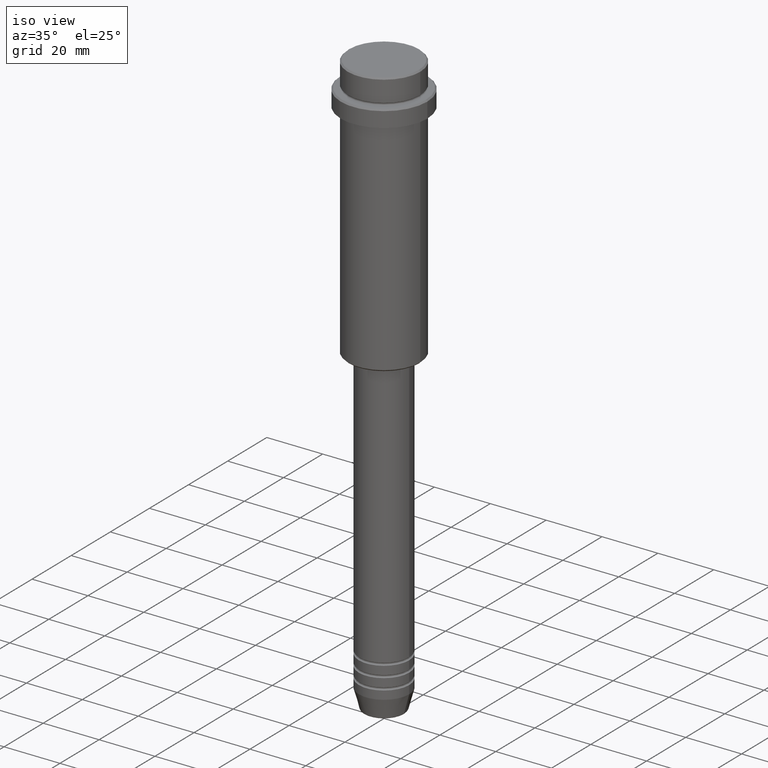
[diagram: clean part render]
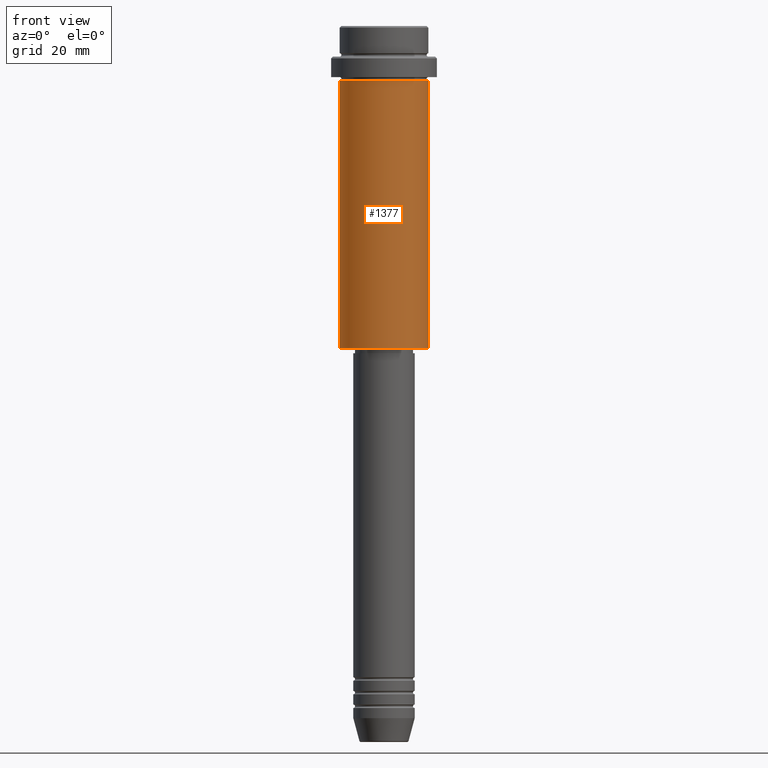
[diagram: tour spotlight — one face highlighted and labeled with its STEP entity id]
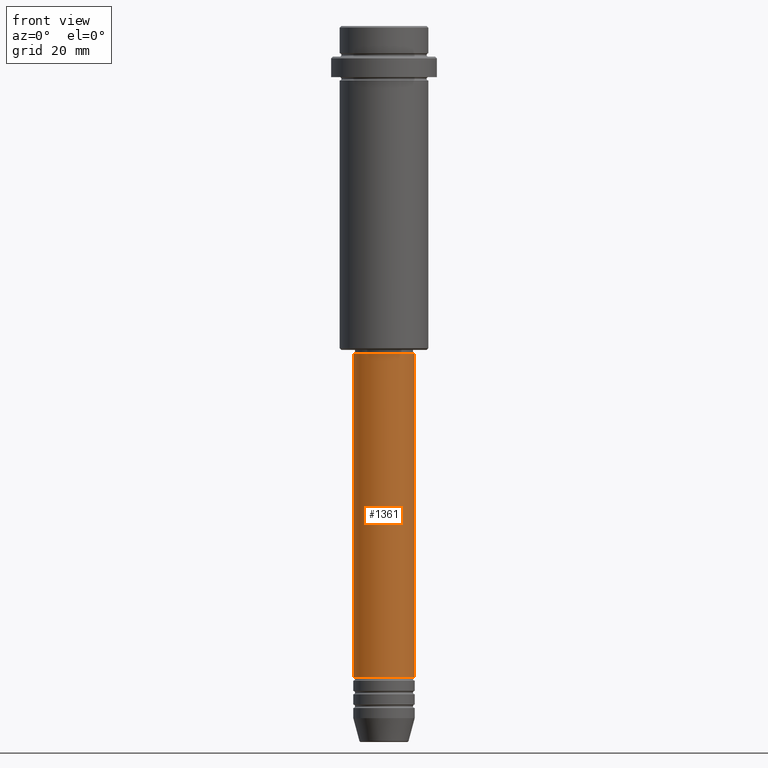
[diagram: tour spotlight — one face highlighted and labeled with its STEP entity id]
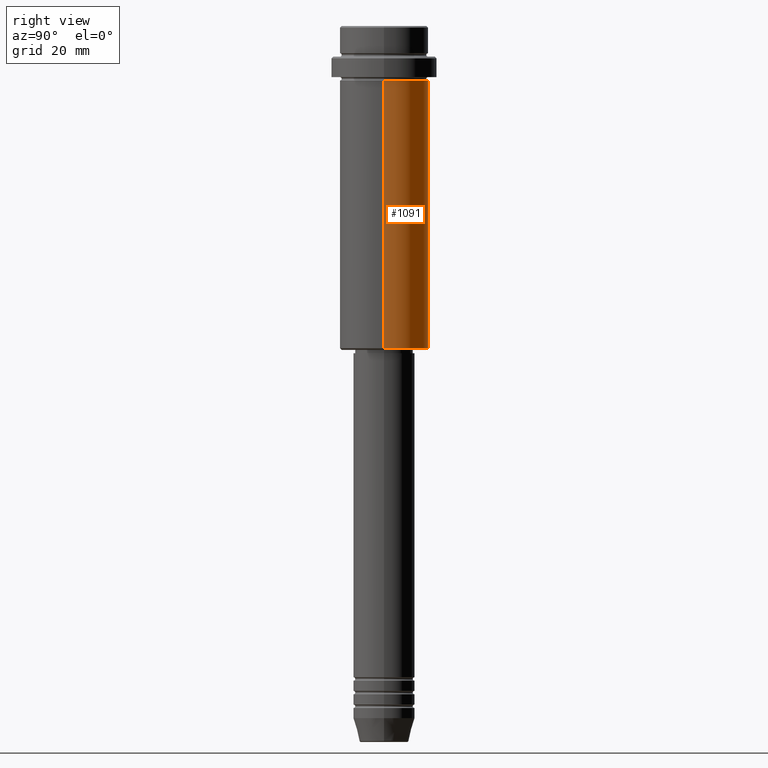
[diagram: tour spotlight — one face highlighted and labeled with its STEP entity id]
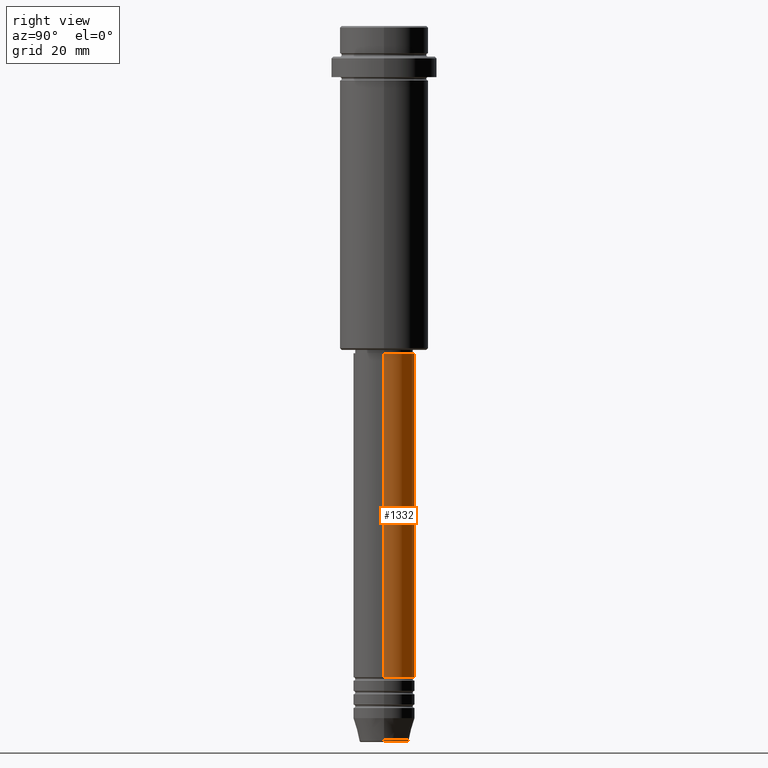
[diagram: tour spotlight — one face highlighted and labeled with its STEP entity id]
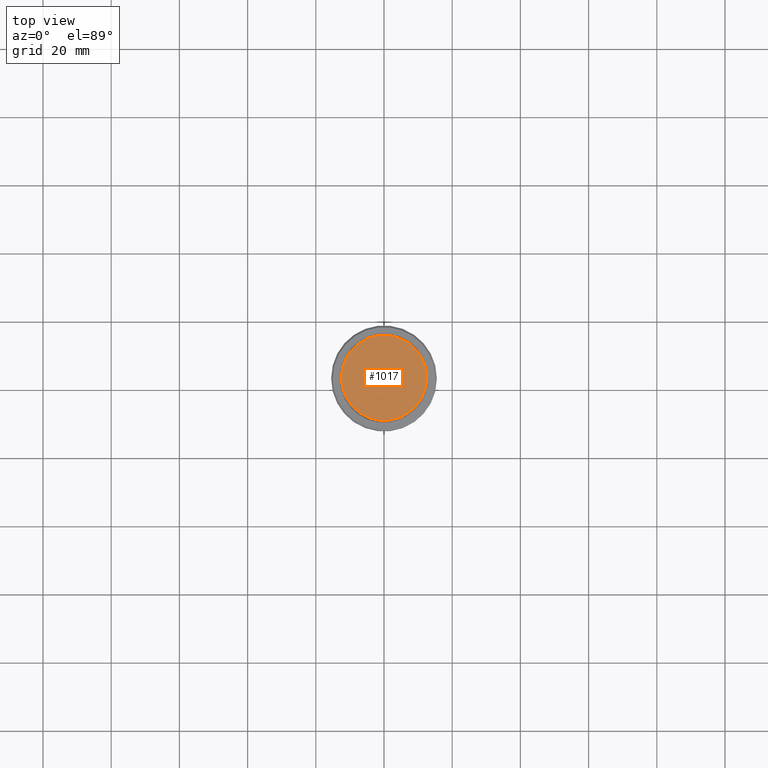
[diagram: tour spotlight — one face highlighted and labeled with its STEP entity id]
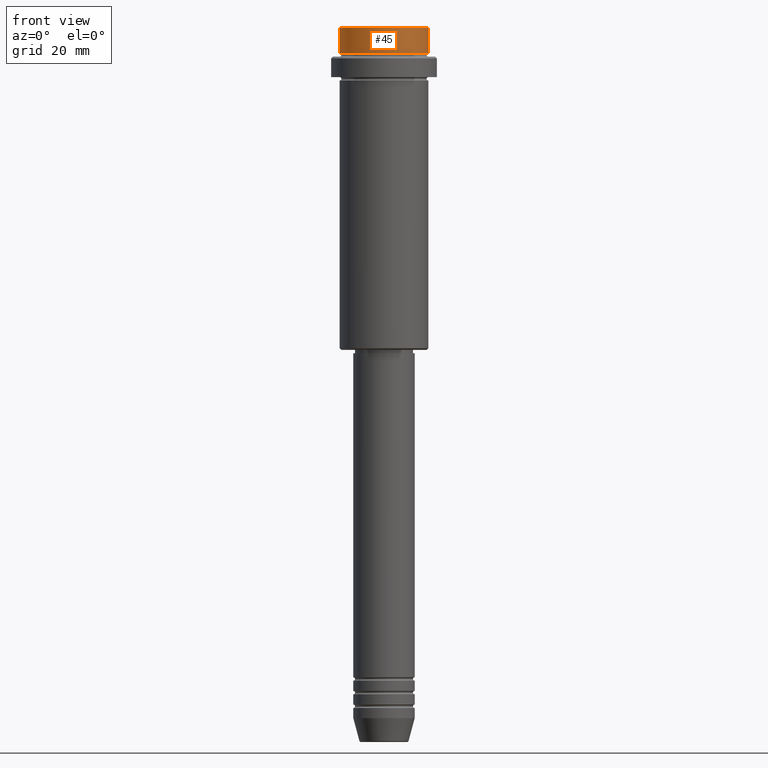
[diagram: tour spotlight — one face highlighted and labeled with its STEP entity id]
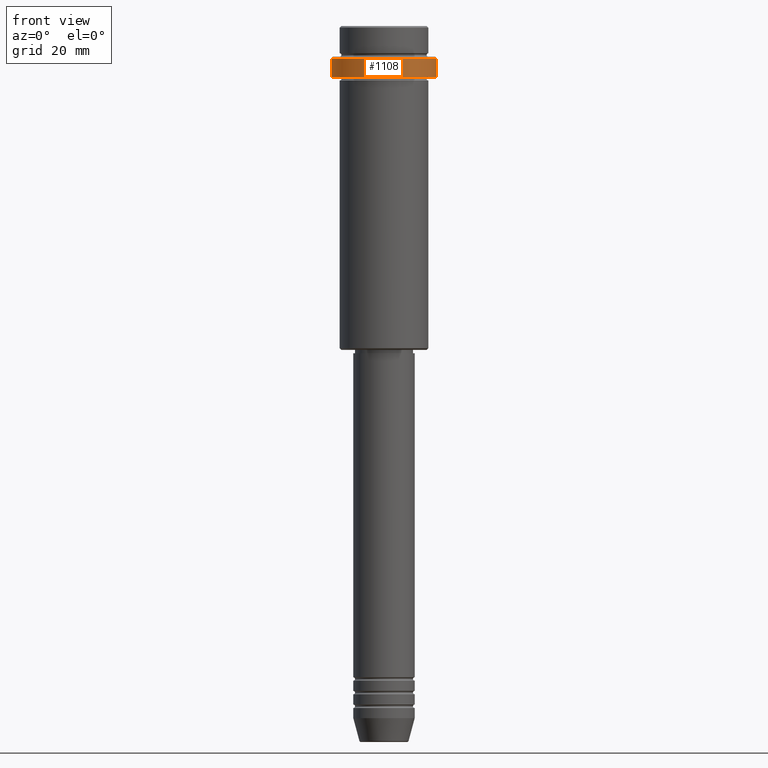
[diagram: tour spotlight — one face highlighted and labeled with its STEP entity id]
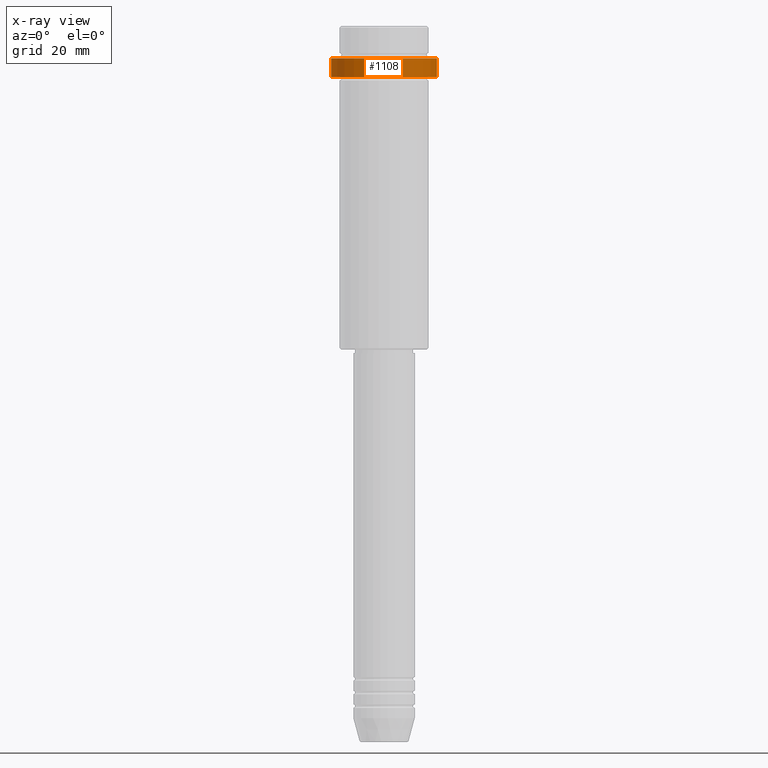
[diagram: x-ray of the same camera — body ghosted, this tour face saturated]
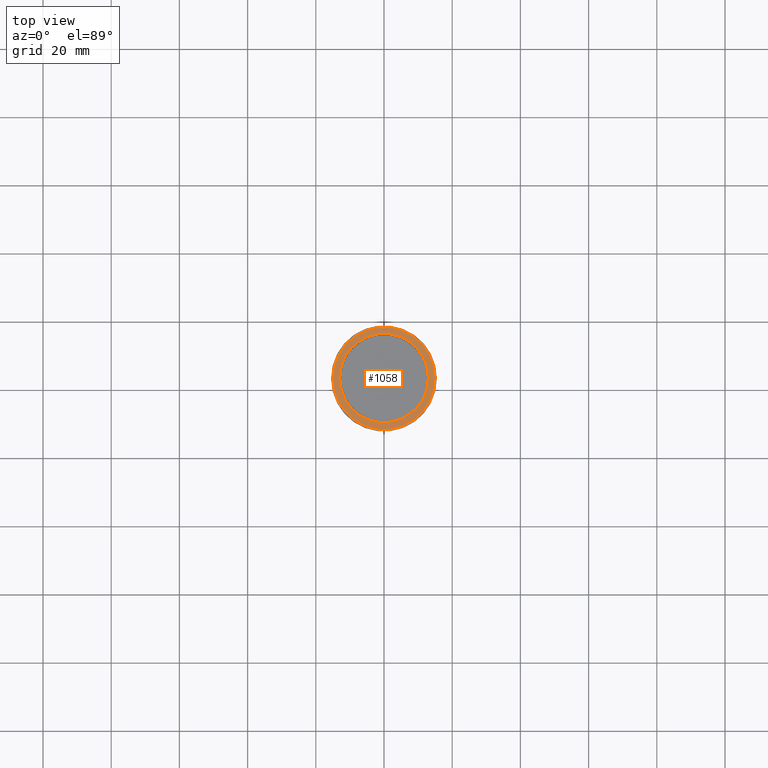
[diagram: tour spotlight — one face highlighted and labeled with its STEP entity id]
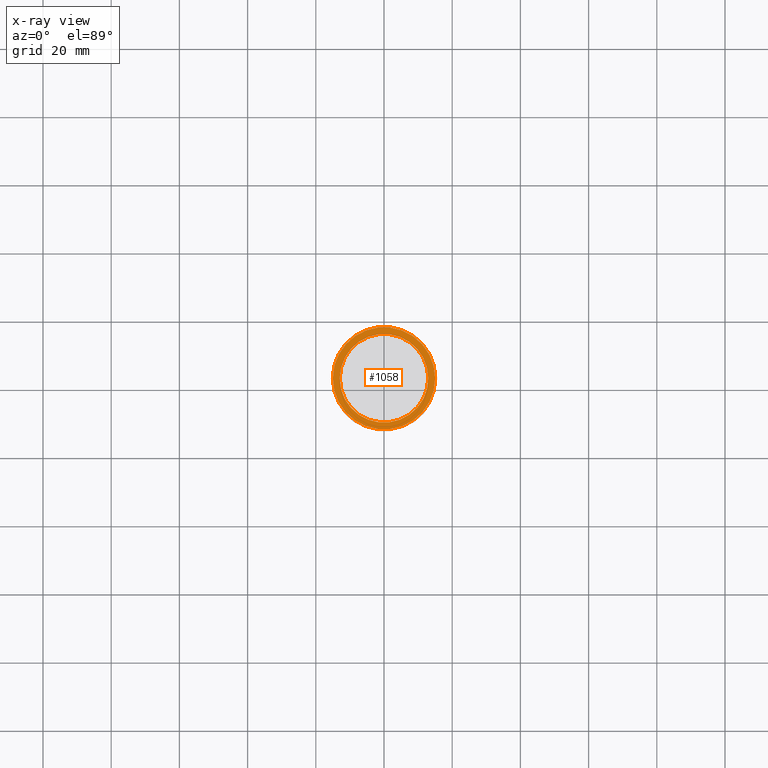
[diagram: x-ray of the same camera — body ghosted, this tour face saturated]
A machine part: a face-by-face anatomy tour. The part has 52 B-rep faces; the first image is the clean iso view, then the 8 largest visible faces are spotlighted one at a time (largest first), each with its STEP entity span.

Face 1 — front view, entity #1377. In plain terms, the highlighted cylindrical surface (partial cylindrical patch) has radius 13 mm, axis along (-0, -0, 1).
Definition (entity closure, byte-faithful):
#9 = VECTOR ( 'NONE', #1273, 1000.000000000000000 ) ;
#31 = CIRCLE ( 'NONE', #781, 13.00000000000000000 ) ;
#50 = EDGE_CURVE ( 'NONE', #1188, #589, #1367, .T. ) ;
#56 = VECTOR ( 'NONE', #707, 1000.000000000000000 ) ;
#84 = CARTESIAN_POINT ( 'NONE',  ( 0.000000000000000000, 0.000000000000000000, -16.00000000000000000 ) ) ;
#154 = VERTEX_POINT ( 'NONE', #459 ) ;
#169 = EDGE_CURVE ( 'NONE', #589, #154, #31, .T. ) ;
#177 = CYLINDRICAL_SURFACE ( 'NONE', #901, 13.00000000000000000 ) ;
#216 = AXIS2_PLACEMENT_3D ( 'NONE', #1342, #576, #286 ) ;
#259 = EDGE_CURVE ( 'NONE', #1188, #449, #962, .T. ) ;
#286 = DIRECTION ( 'NONE',  ( -1.000000000000000000, 0.000000000000000000, 0.000000000000000000 ) ) ;
#298 = FACE_OUTER_BOUND ( 'NONE', #1365, .T. ) ;
#386 = CARTESIAN_POINT ( 'NONE',  ( -13.00000000000000000, 1.592040838891559095E-15, 0.000000000000000000 ) ) ;
#391 = ORIENTED_EDGE ( 'NONE', *, *, #169, .F. ) ;
#449 = VERTEX_POINT ( 'NONE', #1151 ) ;
#459 = CARTESIAN_POINT ( 'NONE',  ( 13.00000000000000000, 0.000000000000000000, -16.00000000000000000 ) ) ;
#551 = EDGE_CURVE ( 'NONE', #449, #154, #618, .T. ) ;
#576 = DIRECTION ( 'NONE',  ( -0.000000000000000000, -0.000000000000000000, 1.000000000000000000 ) ) ;
#589 = VERTEX_POINT ( 'NONE', #775 ) ;
#611 = CARTESIAN_POINT ( 'NONE',  ( 0.000000000000000000, 0.000000000000000000, 0.000000000000000000 ) ) ;
#618 = LINE ( 'NONE', #1173, #9 ) ;
#707 = DIRECTION ( 'NONE',  ( -0.000000000000000000, -0.000000000000000000, 1.000000000000000000 ) ) ;
#759 = ORIENTED_EDGE ( 'NONE', *, *, #259, .T. ) ;
#775 = CARTESIAN_POINT ( 'NONE',  ( -13.00000000000000000, 1.592040838891559095E-15, -16.00000000000000000 ) ) ;
#781 = AXIS2_PLACEMENT_3D ( 'NONE', #84, #849, #950 ) ;
#849 = DIRECTION ( 'NONE',  ( -0.000000000000000000, -0.000000000000000000, 1.000000000000000000 ) ) ;
#901 = AXIS2_PLACEMENT_3D ( 'NONE', #611, #1044, #1163 ) ;
#950 = DIRECTION ( 'NONE',  ( 1.000000000000000000, 0.000000000000000000, 0.000000000000000000 ) ) ;
#962 = CIRCLE ( 'NONE', #216, 13.00000000000000000 ) ;
#1044 = DIRECTION ( 'NONE',  ( -0.000000000000000000, -0.000000000000000000, 1.000000000000000000 ) ) ;
#1135 = CARTESIAN_POINT ( 'NONE',  ( -13.00000000000000000, 1.592040838891559095E-15, -94.49999999999994316 ) ) ;
#1151 = CARTESIAN_POINT ( 'NONE',  ( 13.00000000000000000, 0.000000000000000000, -94.49999999999994316 ) ) ;
#1163 = DIRECTION ( 'NONE',  ( 1.000000000000000000, 0.000000000000000000, 0.000000000000000000 ) ) ;
#1173 = CARTESIAN_POINT ( 'NONE',  ( 13.00000000000000000, 0.000000000000000000, 0.000000000000000000 ) ) ;
#1188 = VERTEX_POINT ( 'NONE', #1135 ) ;
#1189 = ORIENTED_EDGE ( 'NONE', *, *, #551, .T. ) ;
#1261 = ORIENTED_EDGE ( 'NONE', *, *, #50, .F. ) ;
#1273 = DIRECTION ( 'NONE',  ( -0.000000000000000000, -0.000000000000000000, 1.000000000000000000 ) ) ;
#1342 = CARTESIAN_POINT ( 'NONE',  ( 0.000000000000000000, 0.000000000000000000, -94.49999999999994316 ) ) ;
#1365 = EDGE_LOOP ( 'NONE', ( #1261, #759, #1189, #391 ) ) ;
#1367 = LINE ( 'NONE', #386, #56 ) ;
#1377 = ADVANCED_FACE ( 'NONE', ( #298 ), #177, .T. ) ;

Face 2 — front view, entity #1361. In plain terms, the highlighted cylindrical surface (edge-blend (fillet) strip) has radius 9 mm, axis along (-0, -0, 1).
Definition (entity closure, byte-faithful):
#11 = CIRCLE ( 'NONE', #469, 9.000000000000001776 ) ;
#29 = CARTESIAN_POINT ( 'NONE',  ( -9.000000000000001776, 1.102182119232617911E-15, 0.000000000000000000 ) ) ;
#53 = CARTESIAN_POINT ( 'NONE',  ( 0.000000000000000000, 0.000000000000000000, -190.9999999999999147 ) ) ;
#57 = VECTOR ( 'NONE', #680, 1000.000000000000000 ) ;
#64 = VERTEX_POINT ( 'NONE', #1038 ) ;
#77 = VERTEX_POINT ( 'NONE', #1382 ) ;
#101 = VECTOR ( 'NONE', #187, 1000.000000000000000 ) ;
#158 = ORIENTED_EDGE ( 'NONE', *, *, #524, .T. ) ;
#166 = VERTEX_POINT ( 'NONE', #886 ) ;
#167 = CARTESIAN_POINT ( 'NONE',  ( 0.000000000000000000, 0.000000000000000000, 0.000000000000000000 ) ) ;
#187 = DIRECTION ( 'NONE',  ( -0.000000000000000000, -0.000000000000000000, 1.000000000000000000 ) ) ;
#202 = ORIENTED_EDGE ( 'NONE', *, *, #296, .F. ) ;
#296 = EDGE_CURVE ( 'NONE', #77, #64, #1267, .T. ) ;
#302 = VERTEX_POINT ( 'NONE', #499 ) ;
#333 = AXIS2_PLACEMENT_3D ( 'NONE', #53, #389, #1237 ) ;
#363 = EDGE_CURVE ( 'NONE', #77, #166, #441, .T. ) ;
#368 = CARTESIAN_POINT ( 'NONE',  ( 0.000000000000000000, 0.000000000000000000, -96.00000000000000000 ) ) ;
#372 = DIRECTION ( 'NONE',  ( 1.000000000000000000, 0.000000000000000000, 0.000000000000000000 ) ) ;
#389 = DIRECTION ( 'NONE',  ( -0.000000000000000000, -0.000000000000000000, 1.000000000000000000 ) ) ;
#441 = CIRCLE ( 'NONE', #333, 9.000000000000000000 ) ;
#469 = AXIS2_PLACEMENT_3D ( 'NONE', #368, #1033, #372 ) ;
#499 = CARTESIAN_POINT ( 'NONE',  ( 9.000000000000001776, 0.000000000000000000, -96.00000000000000000 ) ) ;
#501 = FACE_OUTER_BOUND ( 'NONE', #1268, .T. ) ;
#524 = EDGE_CURVE ( 'NONE', #166, #302, #1166, .T. ) ;
#680 = DIRECTION ( 'NONE',  ( -0.000000000000000000, -0.000000000000000000, 1.000000000000000000 ) ) ;
#720 = ORIENTED_EDGE ( 'NONE', *, *, #363, .T. ) ;
#732 = CARTESIAN_POINT ( 'NONE',  ( 9.000000000000001776, 0.000000000000000000, 0.000000000000000000 ) ) ;
#742 = ORIENTED_EDGE ( 'NONE', *, *, #841, .F. ) ;
#841 = EDGE_CURVE ( 'NONE', #64, #302, #11, .T. ) ;
#886 = CARTESIAN_POINT ( 'NONE',  ( 9.000000000000000000, 0.000000000000000000, -190.9999999999999147 ) ) ;
#922 = AXIS2_PLACEMENT_3D ( 'NONE', #167, #1278, #930 ) ;
#930 = DIRECTION ( 'NONE',  ( 1.000000000000000000, 0.000000000000000000, 0.000000000000000000 ) ) ;
#1033 = DIRECTION ( 'NONE',  ( -0.000000000000000000, -0.000000000000000000, 1.000000000000000000 ) ) ;
#1038 = CARTESIAN_POINT ( 'NONE',  ( -9.000000000000001776, 1.102182119232617911E-15, -96.00000000000000000 ) ) ;
#1148 = CYLINDRICAL_SURFACE ( 'NONE', #922, 9.000000000000001776 ) ;
#1166 = LINE ( 'NONE', #732, #101 ) ;
#1237 = DIRECTION ( 'NONE',  ( 1.000000000000000000, 0.000000000000000000, 0.000000000000000000 ) ) ;
#1267 = LINE ( 'NONE', #29, #57 ) ;
#1268 = EDGE_LOOP ( 'NONE', ( #202, #720, #158, #742 ) ) ;
#1278 = DIRECTION ( 'NONE',  ( -0.000000000000000000, -0.000000000000000000, 1.000000000000000000 ) ) ;
#1361 = ADVANCED_FACE ( 'NONE', ( #501 ), #1148, .T. ) ;
#1382 = CARTESIAN_POINT ( 'NONE',  ( -9.000000000000000000, 1.102182119232617714E-15, -190.9999999999999147 ) ) ;

Face 3 — right view, entity #1091. In plain terms, the highlighted cylindrical surface (partial cylindrical patch) has radius 13 mm, axis along (-0, -0, 1).
Definition (entity closure, byte-faithful):
#8 = CIRCLE ( 'NONE', #806, 13.00000000000000000 ) ;
#9 = VECTOR ( 'NONE', #1273, 1000.000000000000000 ) ;
#50 = EDGE_CURVE ( 'NONE', #1188, #589, #1367, .T. ) ;
#56 = VECTOR ( 'NONE', #707, 1000.000000000000000 ) ;
#95 = DIRECTION ( 'NONE',  ( -0.000000000000000000, -0.000000000000000000, 1.000000000000000000 ) ) ;
#98 = DIRECTION ( 'NONE',  ( -0.000000000000000000, -0.000000000000000000, 1.000000000000000000 ) ) ;
#109 = EDGE_CURVE ( 'NONE', #449, #1188, #8, .T. ) ;
#154 = VERTEX_POINT ( 'NONE', #459 ) ;
#239 = EDGE_CURVE ( 'NONE', #154, #589, #1219, .T. ) ;
#255 = ORIENTED_EDGE ( 'NONE', *, *, #50, .T. ) ;
#284 = ORIENTED_EDGE ( 'NONE', *, *, #239, .F. ) ;
#308 = DIRECTION ( 'NONE',  ( -1.000000000000000000, 0.000000000000000000, 0.000000000000000000 ) ) ;
#346 = CARTESIAN_POINT ( 'NONE',  ( 0.000000000000000000, 0.000000000000000000, -94.49999999999994316 ) ) ;
#386 = CARTESIAN_POINT ( 'NONE',  ( -13.00000000000000000, 1.592040838891559095E-15, 0.000000000000000000 ) ) ;
#449 = VERTEX_POINT ( 'NONE', #1151 ) ;
#459 = CARTESIAN_POINT ( 'NONE',  ( 13.00000000000000000, 0.000000000000000000, -16.00000000000000000 ) ) ;
#533 = CARTESIAN_POINT ( 'NONE',  ( 0.000000000000000000, 0.000000000000000000, 0.000000000000000000 ) ) ;
#536 = DIRECTION ( 'NONE',  ( 1.000000000000000000, 0.000000000000000000, 0.000000000000000000 ) ) ;
#551 = EDGE_CURVE ( 'NONE', #449, #154, #618, .T. ) ;
#589 = VERTEX_POINT ( 'NONE', #775 ) ;
#599 = AXIS2_PLACEMENT_3D ( 'NONE', #1185, #95, #536 ) ;
#618 = LINE ( 'NONE', #1173, #9 ) ;
#688 = ORIENTED_EDGE ( 'NONE', *, *, #109, .T. ) ;
#707 = DIRECTION ( 'NONE',  ( -0.000000000000000000, -0.000000000000000000, 1.000000000000000000 ) ) ;
#749 = ORIENTED_EDGE ( 'NONE', *, *, #551, .F. ) ;
#775 = CARTESIAN_POINT ( 'NONE',  ( -13.00000000000000000, 1.592040838891559095E-15, -16.00000000000000000 ) ) ;
#806 = AXIS2_PLACEMENT_3D ( 'NONE', #346, #1000, #308 ) ;
#959 = DIRECTION ( 'NONE',  ( 1.000000000000000000, 0.000000000000000000, 0.000000000000000000 ) ) ;
#1000 = DIRECTION ( 'NONE',  ( -0.000000000000000000, -0.000000000000000000, 1.000000000000000000 ) ) ;
#1091 = ADVANCED_FACE ( 'NONE', ( #1101 ), #1309, .T. ) ;
#1101 = FACE_OUTER_BOUND ( 'NONE', #1290, .T. ) ;
#1135 = CARTESIAN_POINT ( 'NONE',  ( -13.00000000000000000, 1.592040838891559095E-15, -94.49999999999994316 ) ) ;
#1151 = CARTESIAN_POINT ( 'NONE',  ( 13.00000000000000000, 0.000000000000000000, -94.49999999999994316 ) ) ;
#1173 = CARTESIAN_POINT ( 'NONE',  ( 13.00000000000000000, 0.000000000000000000, 0.000000000000000000 ) ) ;
#1185 = CARTESIAN_POINT ( 'NONE',  ( 0.000000000000000000, 0.000000000000000000, -16.00000000000000000 ) ) ;
#1188 = VERTEX_POINT ( 'NONE', #1135 ) ;
#1219 = CIRCLE ( 'NONE', #599, 13.00000000000000000 ) ;
#1273 = DIRECTION ( 'NONE',  ( -0.000000000000000000, -0.000000000000000000, 1.000000000000000000 ) ) ;
#1290 = EDGE_LOOP ( 'NONE', ( #688, #255, #284, #749 ) ) ;
#1309 = CYLINDRICAL_SURFACE ( 'NONE', #1392, 13.00000000000000000 ) ;
#1367 = LINE ( 'NONE', #386, #56 ) ;
#1392 = AXIS2_PLACEMENT_3D ( 'NONE', #533, #98, #959 ) ;

Face 4 — right view, entity #1332. In plain terms, the highlighted cylindrical surface (edge-blend (fillet) strip) has radius 9 mm, axis along (-0, -0, 1).
Definition (entity closure, byte-faithful):
#29 = CARTESIAN_POINT ( 'NONE',  ( -9.000000000000001776, 1.102182119232617911E-15, 0.000000000000000000 ) ) ;
#57 = VECTOR ( 'NONE', #680, 1000.000000000000000 ) ;
#64 = VERTEX_POINT ( 'NONE', #1038 ) ;
#77 = VERTEX_POINT ( 'NONE', #1382 ) ;
#101 = VECTOR ( 'NONE', #187, 1000.000000000000000 ) ;
#111 = EDGE_LOOP ( 'NONE', ( #1259, #1124, #1089, #682 ) ) ;
#127 = AXIS2_PLACEMENT_3D ( 'NONE', #1265, #283, #708 ) ;
#161 = DIRECTION ( 'NONE',  ( 1.000000000000000000, 0.000000000000000000, 0.000000000000000000 ) ) ;
#166 = VERTEX_POINT ( 'NONE', #886 ) ;
#187 = DIRECTION ( 'NONE',  ( -0.000000000000000000, -0.000000000000000000, 1.000000000000000000 ) ) ;
#265 = CARTESIAN_POINT ( 'NONE',  ( 0.000000000000000000, 0.000000000000000000, -96.00000000000000000 ) ) ;
#283 = DIRECTION ( 'NONE',  ( -0.000000000000000000, -0.000000000000000000, 1.000000000000000000 ) ) ;
#296 = EDGE_CURVE ( 'NONE', #77, #64, #1267, .T. ) ;
#302 = VERTEX_POINT ( 'NONE', #499 ) ;
#309 = CARTESIAN_POINT ( 'NONE',  ( 0.000000000000000000, 0.000000000000000000, 0.000000000000000000 ) ) ;
#393 = DIRECTION ( 'NONE',  ( -0.000000000000000000, -0.000000000000000000, 1.000000000000000000 ) ) ;
#412 = CYLINDRICAL_SURFACE ( 'NONE', #1106, 9.000000000000001776 ) ;
#475 = AXIS2_PLACEMENT_3D ( 'NONE', #265, #1125, #1329 ) ;
#498 = CIRCLE ( 'NONE', #127, 9.000000000000000000 ) ;
#499 = CARTESIAN_POINT ( 'NONE',  ( 9.000000000000001776, 0.000000000000000000, -96.00000000000000000 ) ) ;
#524 = EDGE_CURVE ( 'NONE', #166, #302, #1166, .T. ) ;
#680 = DIRECTION ( 'NONE',  ( -0.000000000000000000, -0.000000000000000000, 1.000000000000000000 ) ) ;
#682 = ORIENTED_EDGE ( 'NONE', *, *, #524, .F. ) ;
#708 = DIRECTION ( 'NONE',  ( 1.000000000000000000, 0.000000000000000000, 0.000000000000000000 ) ) ;
#732 = CARTESIAN_POINT ( 'NONE',  ( 9.000000000000001776, 0.000000000000000000, 0.000000000000000000 ) ) ;
#831 = CIRCLE ( 'NONE', #475, 9.000000000000001776 ) ;
#886 = CARTESIAN_POINT ( 'NONE',  ( 9.000000000000000000, 0.000000000000000000, -190.9999999999999147 ) ) ;
#951 = FACE_OUTER_BOUND ( 'NONE', #111, .T. ) ;
#1038 = CARTESIAN_POINT ( 'NONE',  ( -9.000000000000001776, 1.102182119232617911E-15, -96.00000000000000000 ) ) ;
#1089 = ORIENTED_EDGE ( 'NONE', *, *, #1212, .F. ) ;
#1106 = AXIS2_PLACEMENT_3D ( 'NONE', #309, #393, #161 ) ;
#1124 = ORIENTED_EDGE ( 'NONE', *, *, #296, .T. ) ;
#1125 = DIRECTION ( 'NONE',  ( -0.000000000000000000, -0.000000000000000000, 1.000000000000000000 ) ) ;
#1166 = LINE ( 'NONE', #732, #101 ) ;
#1212 = EDGE_CURVE ( 'NONE', #302, #64, #831, .T. ) ;
#1259 = ORIENTED_EDGE ( 'NONE', *, *, #1358, .T. ) ;
#1265 = CARTESIAN_POINT ( 'NONE',  ( 0.000000000000000000, 0.000000000000000000, -190.9999999999999147 ) ) ;
#1267 = LINE ( 'NONE', #29, #57 ) ;
#1329 = DIRECTION ( 'NONE',  ( 1.000000000000000000, 0.000000000000000000, 0.000000000000000000 ) ) ;
#1332 = ADVANCED_FACE ( 'NONE', ( #951 ), #412, .T. ) ;
#1358 = EDGE_CURVE ( 'NONE', #166, #77, #498, .T. ) ;
#1382 = CARTESIAN_POINT ( 'NONE',  ( -9.000000000000000000, 1.102182119232617714E-15, -190.9999999999999147 ) ) ;

Face 5 — top view, entity #1017. In plain terms, the highlighted planar face has unit normal (0, -0, 1).
Definition (entity closure, byte-faithful):
#122 = AXIS2_PLACEMENT_3D ( 'NONE', #1202, #1302, #1095 ) ;
#128 = CARTESIAN_POINT ( 'NONE',  ( 0.000000000000000000, 0.000000000000000000, 0.000000000000000000 ) ) ;
#334 = CIRCLE ( 'NONE', #1015, 12.49999999999998579 ) ;
#433 = DIRECTION ( 'NONE',  ( -0.000000000000000000, -0.000000000000000000, 1.000000000000000000 ) ) ;
#539 = CARTESIAN_POINT ( 'NONE',  ( -12.49999999999998579, 0.000000000000000000, 0.000000000000000000 ) ) ;
#625 = DIRECTION ( 'NONE',  ( 1.000000000000000000, 0.000000000000000000, 0.000000000000000000 ) ) ;
#654 = FACE_OUTER_BOUND ( 'NONE', #1289, .T. ) ;
#657 = EDGE_CURVE ( 'NONE', #1094, #1156, #334, .T. ) ;
#884 = DIRECTION ( 'NONE',  ( 1.000000000000000000, 0.000000000000000000, 0.000000000000000000 ) ) ;
#889 = EDGE_CURVE ( 'NONE', #1156, #1094, #1296, .T. ) ;
#936 = DIRECTION ( 'NONE',  ( -0.000000000000000000, -0.000000000000000000, 1.000000000000000000 ) ) ;
#1015 = AXIS2_PLACEMENT_3D ( 'NONE', #128, #433, #884 ) ;
#1017 = ADVANCED_FACE ( 'NONE', ( #654 ), #1090, .T. ) ;
#1090 = PLANE ( 'NONE',  #122 ) ;
#1094 = VERTEX_POINT ( 'NONE', #539 ) ;
#1095 = DIRECTION ( 'NONE',  ( 1.000000000000000000, 0.000000000000000000, 0.000000000000000000 ) ) ;
#1123 = ORIENTED_EDGE ( 'NONE', *, *, #889, .T. ) ;
#1156 = VERTEX_POINT ( 'NONE', #1222 ) ;
#1202 = CARTESIAN_POINT ( 'NONE',  ( 0.000000000000000000, 0.000000000000000000, 0.000000000000000000 ) ) ;
#1222 = CARTESIAN_POINT ( 'NONE',  ( 12.49999999999998579, 1.561424668912874125E-15, 0.000000000000000000 ) ) ;
#1271 = ORIENTED_EDGE ( 'NONE', *, *, #657, .T. ) ;
#1289 = EDGE_LOOP ( 'NONE', ( #1271, #1123 ) ) ;
#1296 = CIRCLE ( 'NONE', #1337, 12.49999999999998579 ) ;
#1302 = DIRECTION ( 'NONE',  ( 0.000000000000000000, -0.000000000000000000, 1.000000000000000000 ) ) ;
#1337 = AXIS2_PLACEMENT_3D ( 'NONE', #1396, #936, #625 ) ;
#1396 = CARTESIAN_POINT ( 'NONE',  ( 0.000000000000000000, 0.000000000000000000, 0.000000000000000000 ) ) ;

Face 6 — front view, entity #45. In plain terms, the highlighted cylindrical surface (partial cylindrical patch) has radius 13 mm, axis along (-0, -0, 1).
Definition (entity closure, byte-faithful):
#13 = AXIS2_PLACEMENT_3D ( 'NONE', #925, #1371, #709 ) ;
#45 = ADVANCED_FACE ( 'NONE', ( #1029 ), #1374, .T. ) ;
#54 = CARTESIAN_POINT ( 'NONE',  ( 0.000000000000000000, 0.000000000000000000, 0.000000000000000000 ) ) ;
#68 = DIRECTION ( 'NONE',  ( -0.000000000000000000, -0.000000000000000000, 1.000000000000000000 ) ) ;
#81 = AXIS2_PLACEMENT_3D ( 'NONE', #311, #740, #932 ) ;
#89 = DIRECTION ( 'NONE',  ( -0.000000000000000000, -0.000000000000000000, 1.000000000000000000 ) ) ;
#145 = EDGE_CURVE ( 'NONE', #929, #159, #1107, .T. ) ;
#159 = VERTEX_POINT ( 'NONE', #525 ) ;
#170 = VECTOR ( 'NONE', #859, 1000.000000000000000 ) ;
#173 = CARTESIAN_POINT ( 'NONE',  ( -12.99999999999999822, 1.592040838891558898E-15, 0.000000000000000000 ) ) ;
#186 = ORIENTED_EDGE ( 'NONE', *, *, #972, .T. ) ;
#200 = CARTESIAN_POINT ( 'NONE',  ( 12.99999999999999822, 0.000000000000000000, 0.000000000000000000 ) ) ;
#278 = EDGE_LOOP ( 'NONE', ( #376, #310, #1121, #186 ) ) ;
#310 = ORIENTED_EDGE ( 'NONE', *, *, #952, .T. ) ;
#311 = CARTESIAN_POINT ( 'NONE',  ( 0.000000000000000000, 0.000000000000000000, -7.999999999999998224 ) ) ;
#376 = ORIENTED_EDGE ( 'NONE', *, *, #488, .F. ) ;
#388 = CARTESIAN_POINT ( 'NONE',  ( 12.99999999999999822, 0.000000000000000000, -7.999999999999998224 ) ) ;
#450 = CARTESIAN_POINT ( 'NONE',  ( -12.99999999999999822, 1.592040838891558898E-15, -0.5000000000000316414 ) ) ;
#488 = EDGE_CURVE ( 'NONE', #1334, #1001, #1285, .T. ) ;
#505 = DIRECTION ( 'NONE',  ( 1.000000000000000000, 0.000000000000000000, 0.000000000000000000 ) ) ;
#525 = CARTESIAN_POINT ( 'NONE',  ( 12.99999999999999822, 0.000000000000000000, -0.5000000000000316414 ) ) ;
#581 = AXIS2_PLACEMENT_3D ( 'NONE', #54, #68, #505 ) ;
#709 = DIRECTION ( 'NONE',  ( 1.000000000000000000, 0.000000000000000000, 0.000000000000000000 ) ) ;
#733 = VECTOR ( 'NONE', #89, 1000.000000000000000 ) ;
#740 = DIRECTION ( 'NONE',  ( -0.000000000000000000, -0.000000000000000000, 1.000000000000000000 ) ) ;
#787 = CIRCLE ( 'NONE', #81, 12.99999999999999822 ) ;
#859 = DIRECTION ( 'NONE',  ( -0.000000000000000000, -0.000000000000000000, 1.000000000000000000 ) ) ;
#925 = CARTESIAN_POINT ( 'NONE',  ( 0.000000000000000000, 0.000000000000000000, -0.5000000000000316414 ) ) ;
#929 = VERTEX_POINT ( 'NONE', #388 ) ;
#932 = DIRECTION ( 'NONE',  ( 1.000000000000000000, 0.000000000000000000, 0.000000000000000000 ) ) ;
#952 = EDGE_CURVE ( 'NONE', #1334, #929, #787, .T. ) ;
#972 = EDGE_CURVE ( 'NONE', #159, #1001, #1319, .T. ) ;
#1001 = VERTEX_POINT ( 'NONE', #450 ) ;
#1029 = FACE_OUTER_BOUND ( 'NONE', #278, .T. ) ;
#1039 = CARTESIAN_POINT ( 'NONE',  ( -12.99999999999999822, 1.592040838891558898E-15, -7.999999999999998224 ) ) ;
#1107 = LINE ( 'NONE', #200, #733 ) ;
#1121 = ORIENTED_EDGE ( 'NONE', *, *, #145, .T. ) ;
#1285 = LINE ( 'NONE', #173, #170 ) ;
#1319 = CIRCLE ( 'NONE', #13, 12.99999999999999822 ) ;
#1334 = VERTEX_POINT ( 'NONE', #1039 ) ;
#1371 = DIRECTION ( 'NONE',  ( 0.000000000000000000, 0.000000000000000000, -1.000000000000000000 ) ) ;
#1374 = CYLINDRICAL_SURFACE ( 'NONE', #581, 12.99999999999999822 ) ;

Face 7 — front view, entity #1108. An x-ray twin of the same camera follows (body ghosted, this face saturated) — the face is partly hidden behind the body. In plain terms, the highlighted cylindrical surface (partial cylindrical patch) has radius 15.5 mm, axis along (-0, -0, 1).
Definition (entity closure, byte-faithful):
#6 = DIRECTION ( 'NONE',  ( 0.000000000000000000, 0.000000000000000000, -1.000000000000000000 ) ) ;
#30 = VERTEX_POINT ( 'NONE', #1147 ) ;
#63 = DIRECTION ( 'NONE',  ( -0.000000000000000000, -0.000000000000000000, 1.000000000000000000 ) ) ;
#70 = LINE ( 'NONE', #1385, #1227 ) ;
#181 = ORIENTED_EDGE ( 'NONE', *, *, #992, .T. ) ;
#185 = CARTESIAN_POINT ( 'NONE',  ( -15.50000000000000000, 1.898202538678397557E-15, -9.500000000000014211 ) ) ;
#196 = CIRCLE ( 'NONE', #1176, 15.50000000000000000 ) ;
#213 = DIRECTION ( 'NONE',  ( 1.000000000000000000, 0.000000000000000000, 0.000000000000000000 ) ) ;
#224 = CYLINDRICAL_SURFACE ( 'NONE', #380, 15.50000000000000000 ) ;
#251 = CARTESIAN_POINT ( 'NONE',  ( 15.50000000000000000, 0.000000000000000000, -15.00000000000000178 ) ) ;
#267 = AXIS2_PLACEMENT_3D ( 'NONE', #562, #6, #869 ) ;
#380 = AXIS2_PLACEMENT_3D ( 'NONE', #754, #556, #213 ) ;
#400 = DIRECTION ( 'NONE',  ( -0.000000000000000000, -0.000000000000000000, 1.000000000000000000 ) ) ;
#431 = ORIENTED_EDGE ( 'NONE', *, *, #847, .T. ) ;
#497 = CARTESIAN_POINT ( 'NONE',  ( 0.000000000000000000, 0.000000000000000000, -15.00000000000000178 ) ) ;
#548 = VERTEX_POINT ( 'NONE', #825 ) ;
#556 = DIRECTION ( 'NONE',  ( -0.000000000000000000, -0.000000000000000000, 1.000000000000000000 ) ) ;
#562 = CARTESIAN_POINT ( 'NONE',  ( 0.000000000000000000, 0.000000000000000000, -9.500000000000014211 ) ) ;
#568 = EDGE_LOOP ( 'NONE', ( #1400, #431, #181, #997 ) ) ;
#596 = CARTESIAN_POINT ( 'NONE',  ( -15.50000000000000000, 1.898202538678397557E-15, 0.000000000000000000 ) ) ;
#754 = CARTESIAN_POINT ( 'NONE',  ( 0.000000000000000000, 0.000000000000000000, 0.000000000000000000 ) ) ;
#760 = FACE_OUTER_BOUND ( 'NONE', #568, .T. ) ;
#825 = CARTESIAN_POINT ( 'NONE',  ( -15.50000000000000000, 1.898202538678397557E-15, -15.00000000000000178 ) ) ;
#829 = LINE ( 'NONE', #596, #1037 ) ;
#847 = EDGE_CURVE ( 'NONE', #548, #1256, #196, .T. ) ;
#868 = VERTEX_POINT ( 'NONE', #185 ) ;
#869 = DIRECTION ( 'NONE',  ( 1.000000000000000000, 0.000000000000000000, 0.000000000000000000 ) ) ;
#895 = DIRECTION ( 'NONE',  ( 1.000000000000000000, 0.000000000000000000, 0.000000000000000000 ) ) ;
#992 = EDGE_CURVE ( 'NONE', #1256, #30, #70, .T. ) ;
#997 = ORIENTED_EDGE ( 'NONE', *, *, #1076, .T. ) ;
#1037 = VECTOR ( 'NONE', #63, 1000.000000000000000 ) ;
#1076 = EDGE_CURVE ( 'NONE', #30, #868, #1105, .T. ) ;
#1105 = CIRCLE ( 'NONE', #267, 15.50000000000000000 ) ;
#1108 = ADVANCED_FACE ( 'NONE', ( #760 ), #224, .T. ) ;
#1147 = CARTESIAN_POINT ( 'NONE',  ( 15.50000000000000000, 0.000000000000000000, -9.500000000000014211 ) ) ;
#1176 = AXIS2_PLACEMENT_3D ( 'NONE', #497, #1226, #895 ) ;
#1226 = DIRECTION ( 'NONE',  ( -0.000000000000000000, -0.000000000000000000, 1.000000000000000000 ) ) ;
#1227 = VECTOR ( 'NONE', #400, 1000.000000000000000 ) ;
#1256 = VERTEX_POINT ( 'NONE', #251 ) ;
#1343 = EDGE_CURVE ( 'NONE', #548, #868, #829, .T. ) ;
#1385 = CARTESIAN_POINT ( 'NONE',  ( 15.50000000000000000, 0.000000000000000000, 0.000000000000000000 ) ) ;
#1400 = ORIENTED_EDGE ( 'NONE', *, *, #1343, .F. ) ;

Face 8 — top view, entity #1058. An x-ray twin of the same camera follows (body ghosted, this face saturated) — the face is partly hidden behind the body. In plain terms, the highlighted planar face has unit normal (0, -0, 1).
Definition (entity closure, byte-faithful):
#43 = CARTESIAN_POINT ( 'NONE',  ( 12.99999999999999467, 0.000000000000000000, -9.000000000000001776 ) ) ;
#60 = CIRCLE ( 'NONE', #856, 14.99999999999998579 ) ;
#112 = DIRECTION ( 'NONE',  ( 0.000000000000000000, -0.000000000000000000, 1.000000000000000000 ) ) ;
#118 = CIRCLE ( 'NONE', #465, 12.99999999999999467 ) ;
#124 = EDGE_CURVE ( 'NONE', #1197, #1194, #687, .T. ) ;
#125 = VERTEX_POINT ( 'NONE', #861 ) ;
#153 = EDGE_CURVE ( 'NONE', #1194, #1197, #118, .T. ) ;
#193 = AXIS2_PLACEMENT_3D ( 'NONE', #1410, #752, #237 ) ;
#229 = ORIENTED_EDGE ( 'NONE', *, *, #1210, .T. ) ;
#237 = DIRECTION ( 'NONE',  ( 1.000000000000000000, 0.000000000000000000, 0.000000000000000000 ) ) ;
#256 = CARTESIAN_POINT ( 'NONE',  ( 0.000000000000000000, 0.000000000000000000, -9.000000000000001776 ) ) ;
#353 = DIRECTION ( 'NONE',  ( 0.000000000000000000, 0.000000000000000000, -1.000000000000000000 ) ) ;
#411 = CARTESIAN_POINT ( 'NONE',  ( 0.000000000000000000, 0.000000000000000000, -9.000000000000001776 ) ) ;
#420 = DIRECTION ( 'NONE',  ( 1.000000000000000000, 0.000000000000000000, 0.000000000000000000 ) ) ;
#461 = ORIENTED_EDGE ( 'NONE', *, *, #478, .T. ) ;
#465 = AXIS2_PLACEMENT_3D ( 'NONE', #411, #353, #1192 ) ;
#472 = AXIS2_PLACEMENT_3D ( 'NONE', #975, #112, #1325 ) ;
#478 = EDGE_CURVE ( 'NONE', #125, #721, #920, .T. ) ;
#528 = CARTESIAN_POINT ( 'NONE',  ( 0.000000000000000000, 0.000000000000000000, -9.000000000000001776 ) ) ;
#549 = FACE_OUTER_BOUND ( 'NONE', #1395, .T. ) ;
#687 = CIRCLE ( 'NONE', #193, 12.99999999999999467 ) ;
#698 = CARTESIAN_POINT ( 'NONE',  ( 14.99999999999998579, 1.867586368699712587E-15, -9.000000000000001776 ) ) ;
#717 = EDGE_LOOP ( 'NONE', ( #1047, #799 ) ) ;
#721 = VERTEX_POINT ( 'NONE', #698 ) ;
#750 = FACE_BOUND ( 'NONE', #717, .T. ) ;
#752 = DIRECTION ( 'NONE',  ( 0.000000000000000000, 0.000000000000000000, -1.000000000000000000 ) ) ;
#799 = ORIENTED_EDGE ( 'NONE', *, *, #124, .T. ) ;
#851 = AXIS2_PLACEMENT_3D ( 'NONE', #528, #1292, #420 ) ;
#856 = AXIS2_PLACEMENT_3D ( 'NONE', #256, #1025, #911 ) ;
#861 = CARTESIAN_POINT ( 'NONE',  ( -14.99999999999998579, 0.000000000000000000, -9.000000000000001776 ) ) ;
#911 = DIRECTION ( 'NONE',  ( 1.000000000000000000, 0.000000000000000000, 0.000000000000000000 ) ) ;
#920 = CIRCLE ( 'NONE', #851, 14.99999999999998579 ) ;
#975 = CARTESIAN_POINT ( 'NONE',  ( 0.000000000000000000, 12.49999999999999289, -9.000000000000001776 ) ) ;
#1003 = CARTESIAN_POINT ( 'NONE',  ( -12.99999999999999467, 1.592040838891558504E-15, -9.000000000000001776 ) ) ;
#1025 = DIRECTION ( 'NONE',  ( -0.000000000000000000, -0.000000000000000000, 1.000000000000000000 ) ) ;
#1047 = ORIENTED_EDGE ( 'NONE', *, *, #153, .T. ) ;
#1058 = ADVANCED_FACE ( 'NONE', ( #549, #750 ), #1209, .T. ) ;
#1192 = DIRECTION ( 'NONE',  ( 1.000000000000000000, 0.000000000000000000, 0.000000000000000000 ) ) ;
#1194 = VERTEX_POINT ( 'NONE', #43 ) ;
#1197 = VERTEX_POINT ( 'NONE', #1003 ) ;
#1209 = PLANE ( 'NONE',  #472 ) ;
#1210 = EDGE_CURVE ( 'NONE', #721, #125, #60, .T. ) ;
#1292 = DIRECTION ( 'NONE',  ( -0.000000000000000000, -0.000000000000000000, 1.000000000000000000 ) ) ;
#1325 = DIRECTION ( 'NONE',  ( 1.000000000000000000, 0.000000000000000000, 0.000000000000000000 ) ) ;
#1395 = EDGE_LOOP ( 'NONE', ( #461, #229 ) ) ;
#1410 = CARTESIAN_POINT ( 'NONE',  ( 0.000000000000000000, 0.000000000000000000, -9.000000000000001776 ) ) ;